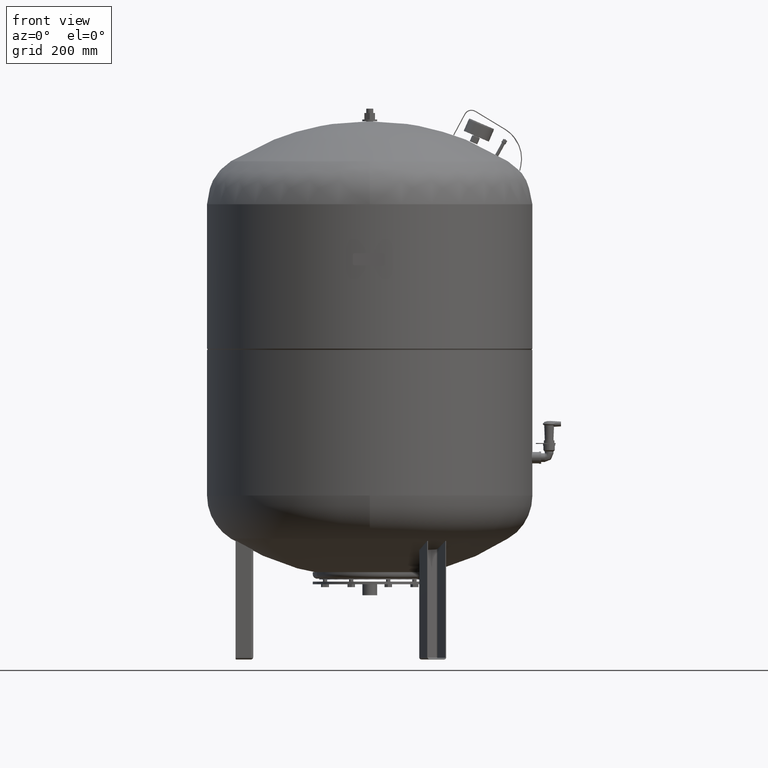
[diagram: clean part render]
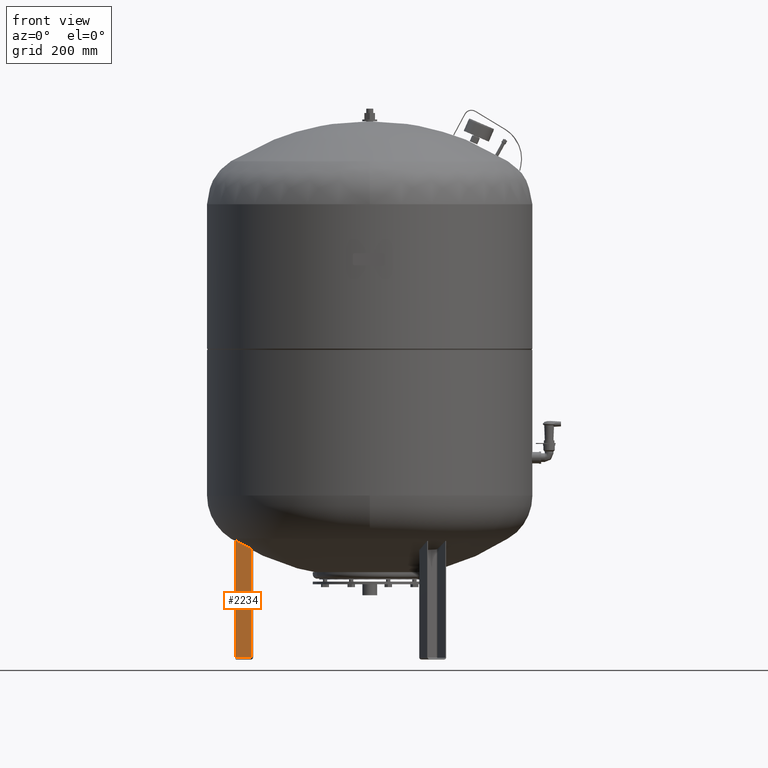
[diagram: same view with one face highlighted and labeled with its STEP entity id]
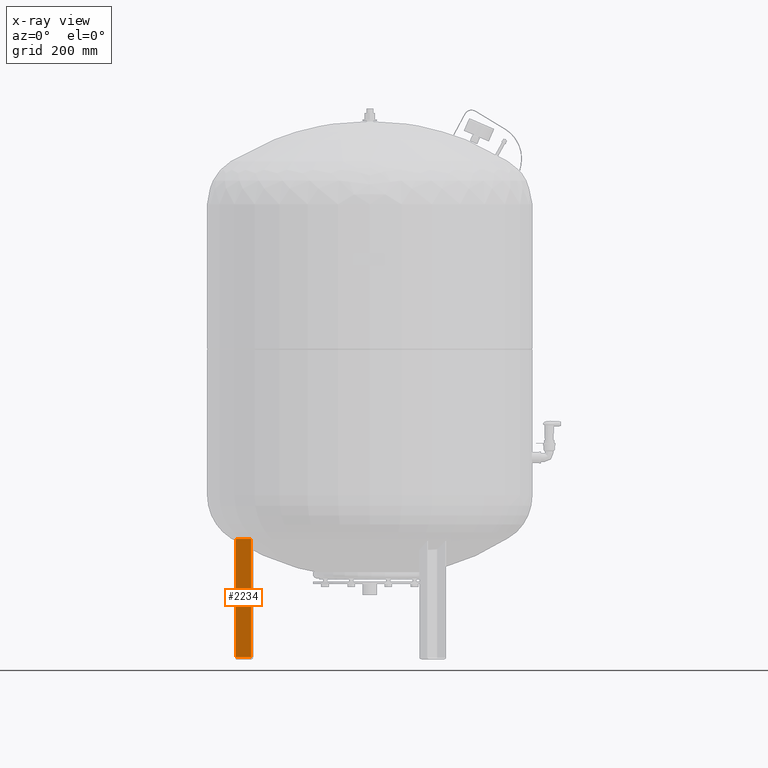
[diagram: x-ray of the same camera — body ghosted, the highlighted face saturated]
A machine part, front view. The second image highlights one B-rep face of the part: STEP entity #2234.
The next image is the same camera in x-ray: the body ghosted, the highlighted face saturated — about 0% of this face is hidden behind the body in this view.
In plain terms, the highlighted planar face has unit normal (0, -1, 0).
Its self-contained STEP definition (entity closure, byte-faithful):
#1332=CARTESIAN_POINT('',(-304.0,-24.999999999999996,274.0));
#1333=VERTEX_POINT('',#1332);
#1341=CARTESIAN_POINT('',(-270.0,-24.999999999999996,274.0));
#1342=VERTEX_POINT('',#1341);
#1343=CARTESIAN_POINT('',(-270.0,-24.999999999999996,274.0));
#1344=DIRECTION('',(-1.0,0.0,0.0));
#1345=VECTOR('',#1344,34.0);
#1346=LINE('',#1343,#1345);
#1347=EDGE_CURVE('',#1342,#1333,#1346,.T.);
#1777=CARTESIAN_POINT('',(-304.0,-25.0,5.000000000000004));
#1778=VERTEX_POINT('',#1777);
#1805=CARTESIAN_POINT('',(-304.0,-25.0,5.000000000000004));
#1806=DIRECTION('',(0.0,0.0,1.0));
#1807=VECTOR('',#1806,269.0);
#1808=LINE('',#1805,#1807);
#1809=EDGE_CURVE('',#1778,#1333,#1808,.T.);
#1969=CARTESIAN_POINT('',(-270.0,-25.000000000000004,5.000000000000004));
#1970=VERTEX_POINT('',#1969);
#1978=CARTESIAN_POINT('',(-270.0,-25.000000000000004,5.000000000000004));
#1979=DIRECTION('',(-1.0,0.0,0.0));
#1980=VECTOR('',#1979,34.0);
#1981=LINE('',#1978,#1980);
#1982=EDGE_CURVE('',#1970,#1778,#1981,.T.);
#2104=CARTESIAN_POINT('',(-270.0,-25.000000000000004,5.000000000000004));
#2105=DIRECTION('',(0.0,0.0,1.0));
#2106=VECTOR('',#2105,269.0);
#2107=LINE('',#2104,#2106);
#2108=EDGE_CURVE('',#1970,#1342,#2107,.T.);
#2223=CARTESIAN_POINT('',(-265.0,-25.000000000000004,4.592425E-015));
#2224=DIRECTION('',(0.0,-1.0,0.0));
#2225=DIRECTION('',(1.0,0.0,0.0));
#2226=AXIS2_PLACEMENT_3D('',#2223,#2224,#2225);
#2227=PLANE('',#2226);
#2228=ORIENTED_EDGE('',*,*,#1809,.F.);
#2229=ORIENTED_EDGE('',*,*,#1982,.F.);
#2230=ORIENTED_EDGE('',*,*,#2108,.T.);
#2231=ORIENTED_EDGE('',*,*,#1347,.T.);
#2232=EDGE_LOOP('',(#2228,#2229,#2230,#2231));
#2233=FACE_OUTER_BOUND('',#2232,.T.);
#2234=ADVANCED_FACE('',(#2233),#2227,.T.);